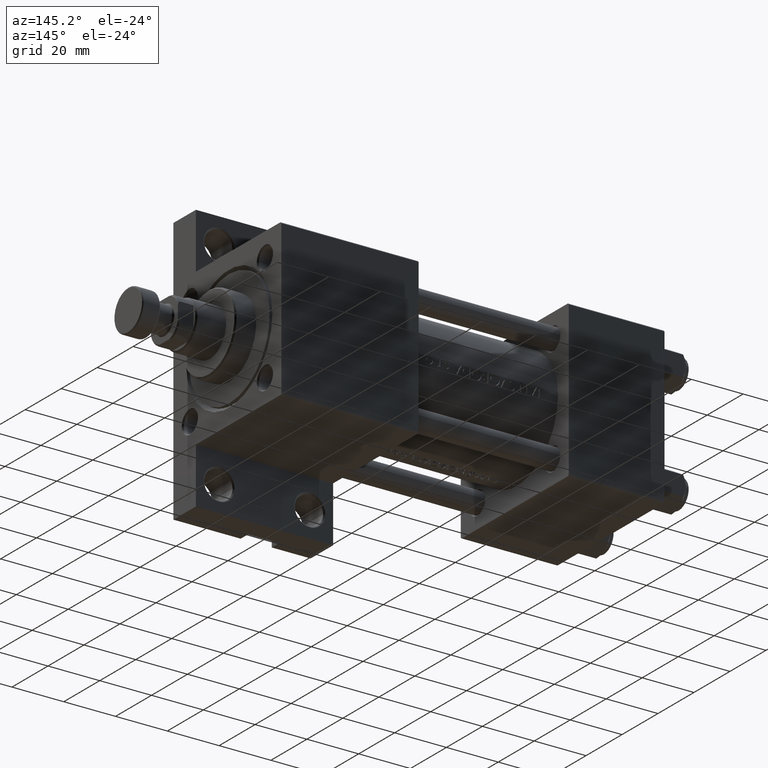
[diagram: clean part render]
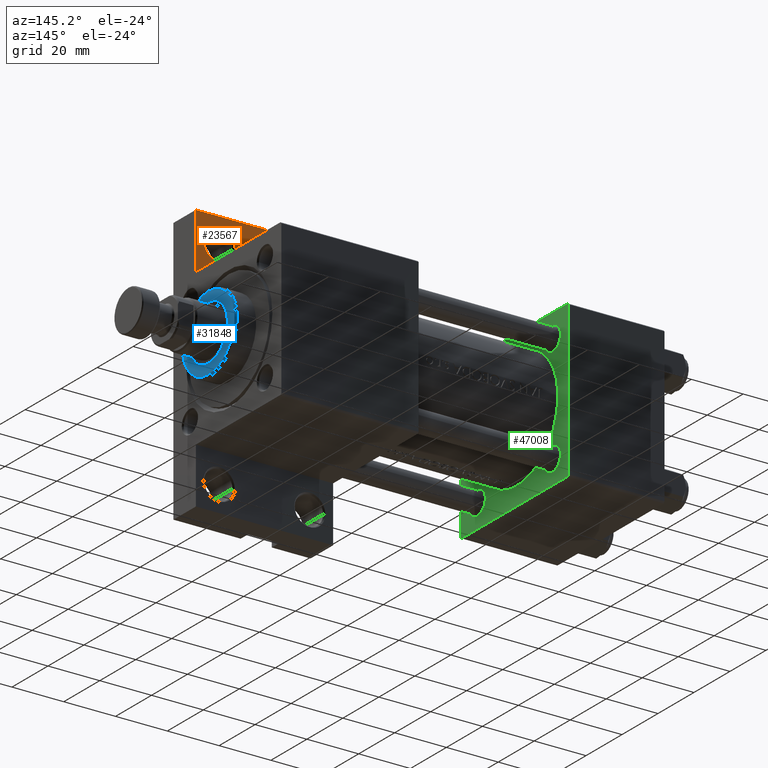
[diagram: same view with three faces highlighted in distinct colors, each labeled with its STEP entity id]
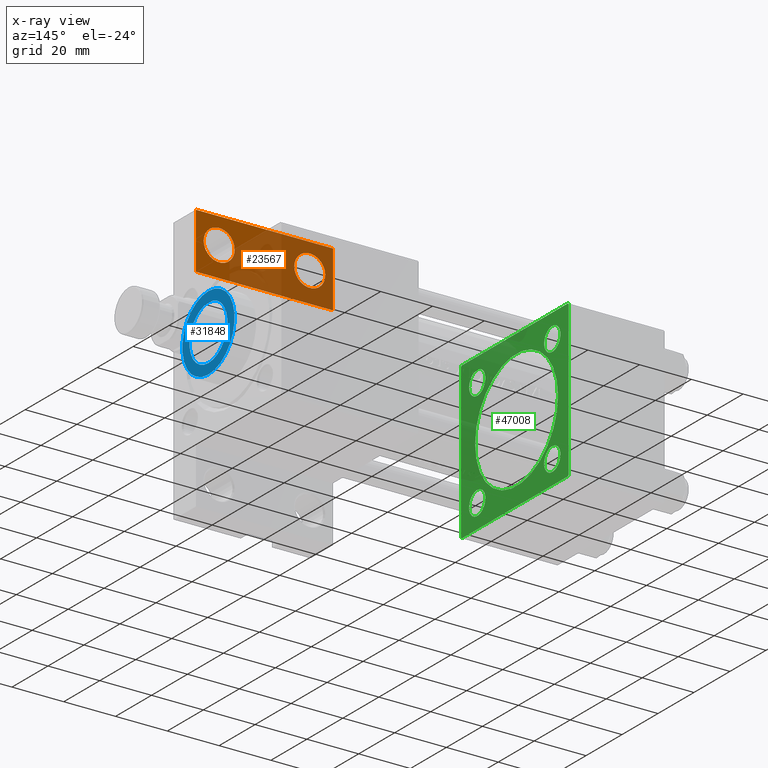
[diagram: x-ray of the same camera — body ghosted, the three highlighted faces saturated]
A machine part, auxiliary view with three faces highlighted in distinct colors.
The next image is the same camera in x-ray (body ghosted, the three faces saturated) — at least one of them is partly hidden behind the body in this view.
Their STEP definitions:

[orange] entity #23567 — the highlighted planar face has unit normal (0, -1, 0).
#2116 = DIRECTION ( 'NONE',  ( -1.000000000000000000, 0.000000000000000000, 0.000000000000000000 ) ) ;
#2266 = VERTEX_POINT ( 'NONE', #44122 ) ;
#2318 = FACE_BOUND ( 'NONE', #23313, .T. ) ;
#2433 = DIRECTION ( 'NONE',  ( -1.000000000000000000, -0.000000000000000000, -0.000000000000000000 ) ) ;
#3293 = EDGE_CURVE ( 'NONE', #2266, #9167, #6793, .T. ) ;
#3896 = DIRECTION ( 'NONE',  ( 0.000000000000000000, 0.000000000000000000, -1.000000000000000000 ) ) ;
#3907 = EDGE_CURVE ( 'NONE', #31834, #22205, #47284, .T. ) ;
#4841 = ORIENTED_EDGE ( 'NONE', *, *, #9310, .F. ) ;
#4990 = DIRECTION ( 'NONE',  ( -0.000000000000000000, -1.000000000000000000, -0.000000000000000000 ) ) ;
#5441 = VERTEX_POINT ( 'NONE', #45553 ) ;
#6793 = CIRCLE ( 'NONE', #26657, 5.999500000000018929 ) ;
#7463 = DIRECTION ( 'NONE',  ( -1.000000000000000000, 0.000000000000000000, 0.000000000000000000 ) ) ;
#7903 = EDGE_CURVE ( 'NONE', #43804, #24729, #18464, .T. ) ;
#8787 = CIRCLE ( 'NONE', #13560, 5.999500000000018929 ) ;
#9167 = VERTEX_POINT ( 'NONE', #36036 ) ;
#9310 = EDGE_CURVE ( 'NONE', #24729, #48321, #10159, .T. ) ;
#9885 = CARTESIAN_POINT ( 'NONE',  ( 144.9994999999999550, -41.50000000000000000, -17.49999999999999645 ) ) ;
#10026 = FACE_BOUND ( 'NONE', #24172, .T. ) ;
#10159 = LINE ( 'NONE', #25581, #35465 ) ;
#10761 = AXIS2_PLACEMENT_3D ( 'NONE', #37957, #3896, #41938 ) ;
#11435 = ORIENTED_EDGE ( 'NONE', *, *, #3293, .T. ) ;
#11563 = AXIS2_PLACEMENT_3D ( 'NONE', #45256, #41526, #7463 ) ;
#12612 = VECTOR ( 'NONE', #4990, 1000.000000000000000 ) ;
#13161 = VECTOR ( 'NONE', #29665, 1000.000000000000000 ) ;
#13560 = AXIS2_PLACEMENT_3D ( 'NONE', #47068, #24688, #16970 ) ;
#13762 = DIRECTION ( 'NONE',  ( 0.000000000000000000, 0.000000000000000000, -1.000000000000000000 ) ) ;
#14603 = LINE ( 'NONE', #36996, #22413 ) ;
#16970 = DIRECTION ( 'NONE',  ( -1.000000000000000000, 0.000000000000000000, 0.000000000000000000 ) ) ;
#17485 = PLANE ( 'NONE',  #22309 ) ;
#18464 = LINE ( 'NONE', #44824, #13161 ) ;
#18947 = EDGE_CURVE ( 'NONE', #48321, #5441, #43267, .T. ) ;
#19263 = ORIENTED_EDGE ( 'NONE', *, *, #34755, .T. ) ;
#19788 = CARTESIAN_POINT ( 'NONE',  ( 94.99999999999998579, -51.50000000000000711, -17.49999999999999645 ) ) ;
#20970 = FACE_OUTER_BOUND ( 'NONE', #26678, .T. ) ;
#22205 = VERTEX_POINT ( 'NONE', #9885 ) ;
#22309 = AXIS2_PLACEMENT_3D ( 'NONE', #40364, #13762, #32676 ) ;
#22413 = VECTOR ( 'NONE', #2433, 1000.000000000000000 ) ;
#23313 = EDGE_LOOP ( 'NONE', ( #42871, #45385 ) ) ;
#23567 = ADVANCED_FACE ( 'NONE', ( #2318, #10026, #20970 ), #17485, .F. ) ;
#24172 = EDGE_LOOP ( 'NONE', ( #11435, #19263 ) ) ;
#24688 = DIRECTION ( 'NONE',  ( 0.000000000000000000, 0.000000000000000000, -1.000000000000000000 ) ) ;
#24729 = VERTEX_POINT ( 'NONE', #44666 ) ;
#25581 = CARTESIAN_POINT ( 'NONE',  ( 95.00000000000000000, -30.00000000000000000, -17.49999999999999645 ) ) ;
#26657 = AXIS2_PLACEMENT_3D ( 'NONE', #32223, #29645, #2116 ) ;
#26678 = EDGE_LOOP ( 'NONE', ( #44725, #4841, #48836, #30220 ) ) ;
#26698 = EDGE_CURVE ( 'NONE', #5441, #43804, #14603, .T. ) ;
#29645 = DIRECTION ( 'NONE',  ( 0.000000000000000000, 0.000000000000000000, -1.000000000000000000 ) ) ;
#29665 = DIRECTION ( 'NONE',  ( 6.454785026890443649E-16, 1.000000000000000000, 0.000000000000000000 ) ) ;
#30220 = ORIENTED_EDGE ( 'NONE', *, *, #26698, .F. ) ;
#31834 = VERTEX_POINT ( 'NONE', #47259 ) ;
#31854 = CARTESIAN_POINT ( 'NONE',  ( 148.0000000000000000, -51.50000000000000711, -17.49999999999999645 ) ) ;
#32223 = CARTESIAN_POINT ( 'NONE',  ( 103.9999999999999574, -41.49999999999997868, -17.49999999999999645 ) ) ;
#32676 = DIRECTION ( 'NONE',  ( -1.000000000000000000, 0.000000000000000000, -0.000000000000000000 ) ) ;
#33029 = CIRCLE ( 'NONE', #11563, 5.999499999999990507 ) ;
#34755 = EDGE_CURVE ( 'NONE', #9167, #2266, #8787, .T. ) ;
#35465 = VECTOR ( 'NONE', #40743, 1000.000000000000000 ) ;
#35830 = CARTESIAN_POINT ( 'NONE',  ( 148.0000000000000000, -30.00000000000000000, -17.49999999999998224 ) ) ;
#36036 = CARTESIAN_POINT ( 'NONE',  ( 98.00049999999993133, -41.49999999999997868, -17.49999999999999645 ) ) ;
#36996 = CARTESIAN_POINT ( 'NONE',  ( 94.99999999999998579, -51.50000000000000711, -17.49999999999999645 ) ) ;
#37957 = CARTESIAN_POINT ( 'NONE',  ( 138.9999999999999432, -41.50000000000000000, -17.49999999999999645 ) ) ;
#40364 = CARTESIAN_POINT ( 'NONE',  ( 0.000000000000000000, 0.000000000000000000, -17.49999999999999645 ) ) ;
#40743 = DIRECTION ( 'NONE',  ( 1.000000000000000000, -1.309225264888156623E-16, 0.000000000000000000 ) ) ;
#41526 = DIRECTION ( 'NONE',  ( 0.000000000000000000, 0.000000000000000000, -1.000000000000000000 ) ) ;
#41938 = DIRECTION ( 'NONE',  ( -1.000000000000000000, 0.000000000000000000, 0.000000000000000000 ) ) ;
#42871 = ORIENTED_EDGE ( 'NONE', *, *, #49190, .T. ) ;
#43267 = LINE ( 'NONE', #31854, #12612 ) ;
#43804 = VERTEX_POINT ( 'NONE', #19788 ) ;
#44122 = CARTESIAN_POINT ( 'NONE',  ( 109.9994999999999692, -41.49999999999997868, -17.49999999999999645 ) ) ;
#44666 = CARTESIAN_POINT ( 'NONE',  ( 95.00000000000000000, -30.00000000000000000, -17.49999999999999645 ) ) ;
#44725 = ORIENTED_EDGE ( 'NONE', *, *, #18947, .F. ) ;
#44824 = CARTESIAN_POINT ( 'NONE',  ( 94.99999999999998579, -51.50000000000000711, -17.49999999999999645 ) ) ;
#45256 = CARTESIAN_POINT ( 'NONE',  ( 138.9999999999999432, -41.50000000000000000, -17.49999999999999645 ) ) ;
#45385 = ORIENTED_EDGE ( 'NONE', *, *, #3907, .T. ) ;
#45553 = CARTESIAN_POINT ( 'NONE',  ( 148.0000000000000000, -51.50000000000000711, -17.49999999999999645 ) ) ;
#47068 = CARTESIAN_POINT ( 'NONE',  ( 103.9999999999999574, -41.49999999999997868, -17.49999999999999645 ) ) ;
#47259 = CARTESIAN_POINT ( 'NONE',  ( 133.0004999999999598, -41.50000000000000000, -17.49999999999999645 ) ) ;
#47284 = CIRCLE ( 'NONE', #10761, 5.999499999999990507 ) ;
#48321 = VERTEX_POINT ( 'NONE', #35830 ) ;
#48836 = ORIENTED_EDGE ( 'NONE', *, *, #7903, .F. ) ;
#49190 = EDGE_CURVE ( 'NONE', #22205, #31834, #33029, .T. ) ;

[blue] entity #31848 — the highlighted planar face has unit normal (1, 0, 0).
#64 = EDGE_LOOP ( 'NONE', ( #24602, #25474 ) ) ;
#2611 = DIRECTION ( 'NONE',  ( 0.000000000000000000, 0.000000000000000000, 1.000000000000000000 ) ) ;
#3331 = EDGE_CURVE ( 'NONE', #13278, #20172, #13132, .T. ) ;
#5596 = DIRECTION ( 'NONE',  ( 1.000000000000000000, 0.000000000000000000, 0.000000000000000000 ) ) ;
#6442 = DIRECTION ( 'NONE',  ( 0.000000000000000000, 0.000000000000000000, 1.000000000000000000 ) ) ;
#9922 = EDGE_CURVE ( 'NONE', #46054, #13655, #11631, .T. ) ;
#11631 = CIRCLE ( 'NONE', #33112, 14.50000000000001776 ) ;
#13132 = CIRCLE ( 'NONE', #48889, 10.50000000000000000 ) ;
#13278 = VERTEX_POINT ( 'NONE', #19707 ) ;
#13655 = VERTEX_POINT ( 'NONE', #35810 ) ;
#17172 = DIRECTION ( 'NONE',  ( 1.000000000000000000, 0.000000000000000000, -0.000000000000000000 ) ) ;
#17664 = CARTESIAN_POINT ( 'NONE',  ( 0.000000000000000000, 0.000000000000000000, 36.69999999999999574 ) ) ;
#18199 = DIRECTION ( 'NONE',  ( 0.000000000000000000, 0.000000000000000000, 1.000000000000000000 ) ) ;
#19125 = CARTESIAN_POINT ( 'NONE',  ( 10.50000000000000000, 0.000000000000000000, 36.69999999999999574 ) ) ;
#19707 = CARTESIAN_POINT ( 'NONE',  ( -10.50000000000000000, 1.285879139104720831E-15, 36.69999999999999574 ) ) ;
#19996 = DIRECTION ( 'NONE',  ( 0.000000000000000000, 0.000000000000000000, 1.000000000000000000 ) ) ;
#20172 = VERTEX_POINT ( 'NONE', #19125 ) ;
#20899 = DIRECTION ( 'NONE',  ( 0.000000000000000000, 0.000000000000000000, 1.000000000000000000 ) ) ;
#21152 = FACE_BOUND ( 'NONE', #48519, .T. ) ;
#24536 = EDGE_CURVE ( 'NONE', #13655, #46054, #24731, .T. ) ;
#24602 = ORIENTED_EDGE ( 'NONE', *, *, #24536, .T. ) ;
#24731 = CIRCLE ( 'NONE', #47771, 14.50000000000001776 ) ;
#25134 = PLANE ( 'NONE',  #39683 ) ;
#25474 = ORIENTED_EDGE ( 'NONE', *, *, #9922, .T. ) ;
#29556 = CARTESIAN_POINT ( 'NONE',  ( 0.000000000000000000, 0.000000000000000000, 36.69999999999999574 ) ) ;
#30127 = EDGE_CURVE ( 'NONE', #20172, #13278, #41214, .T. ) ;
#30883 = AXIS2_PLACEMENT_3D ( 'NONE', #43638, #2611, #43886 ) ;
#31213 = DIRECTION ( 'NONE',  ( 1.000000000000000000, 0.000000000000000000, 0.000000000000000000 ) ) ;
#31848 = ADVANCED_FACE ( 'NONE', ( #21152, #40295 ), #25134, .T. ) ;
#32450 = ORIENTED_EDGE ( 'NONE', *, *, #30127, .F. ) ;
#33064 = DIRECTION ( 'NONE',  ( 1.000000000000000000, 0.000000000000000000, 0.000000000000000000 ) ) ;
#33112 = AXIS2_PLACEMENT_3D ( 'NONE', #34694, #19996, #31213 ) ;
#34527 = ORIENTED_EDGE ( 'NONE', *, *, #3331, .F. ) ;
#34694 = CARTESIAN_POINT ( 'NONE',  ( 0.000000000000000000, 0.000000000000000000, 36.69999999999999574 ) ) ;
#35810 = CARTESIAN_POINT ( 'NONE',  ( -14.50000000000001776, 0.000000000000000000, 36.69999999999999574 ) ) ;
#37103 = CARTESIAN_POINT ( 'NONE',  ( 0.000000000000000000, 0.000000000000000000, 36.69999999999999574 ) ) ;
#39683 = AXIS2_PLACEMENT_3D ( 'NONE', #17664, #20899, #17172 ) ;
#40295 = FACE_OUTER_BOUND ( 'NONE', #64, .T. ) ;
#41214 = CIRCLE ( 'NONE', #30883, 10.50000000000000000 ) ;
#43638 = CARTESIAN_POINT ( 'NONE',  ( 0.000000000000000000, 0.000000000000000000, 36.69999999999999574 ) ) ;
#43886 = DIRECTION ( 'NONE',  ( 1.000000000000000000, 0.000000000000000000, 0.000000000000000000 ) ) ;
#46054 = VERTEX_POINT ( 'NONE', #47903 ) ;
#47771 = AXIS2_PLACEMENT_3D ( 'NONE', #29556, #6442, #33064 ) ;
#47903 = CARTESIAN_POINT ( 'NONE',  ( 14.50000000000001776, 1.806354028742346985E-15, 36.69999999999999574 ) ) ;
#48519 = EDGE_LOOP ( 'NONE', ( #32450, #34527 ) ) ;
#48889 = AXIS2_PLACEMENT_3D ( 'NONE', #37103, #18199, #5596 ) ;

[green] entity #47008 — the highlighted planar face has unit normal (-1, 0, -0).
#137 = AXIS2_PLACEMENT_3D ( 'NONE', #31922, #42602, #19970 ) ;
#194 = AXIS2_PLACEMENT_3D ( 'NONE', #6422, #13877, #47945 ) ;
#599 = EDGE_CURVE ( 'NONE', #42694, #19145, #6523, .T. ) ;
#1147 = ORIENTED_EDGE ( 'NONE', *, *, #42224, .T. ) ;
#1279 = CARTESIAN_POINT ( 'NONE',  ( 37.00000000000000000, 20.84999999999999787, -20.85000000000000142 ) ) ;
#1431 = EDGE_CURVE ( 'NONE', #7532, #31465, #30262, .T. ) ;
#1682 = AXIS2_PLACEMENT_3D ( 'NONE', #6120, #17299, #21284 ) ;
#2034 = CARTESIAN_POINT ( 'NONE',  ( 37.00000000000000000, 2.694222958124176415E-15, -22.00000000000000000 ) ) ;
#2098 = ORIENTED_EDGE ( 'NONE', *, *, #599, .T. ) ;
#2392 = VERTEX_POINT ( 'NONE', #11752 ) ;
#2472 = CIRCLE ( 'NONE', #1682, 4.499999999999990230 ) ;
#2798 = CARTESIAN_POINT ( 'NONE',  ( 37.00000000000000000, 0.000000000000000000, 0.000000000000000000 ) ) ;
#2952 = DIRECTION ( 'NONE',  ( 0.000000000000000000, 0.000000000000000000, 1.000000000000000000 ) ) ;
#3045 = DIRECTION ( 'NONE',  ( -1.000000000000000000, 0.000000000000000000, -0.000000000000000000 ) ) ;
#3082 = DIRECTION ( 'NONE',  ( -1.000000000000000000, 0.000000000000000000, -0.000000000000000000 ) ) ;
#3135 = EDGE_LOOP ( 'NONE', ( #29860, #1147 ) ) ;
#3164 = CARTESIAN_POINT ( 'NONE',  ( 37.00000000000000000, 29.99999999999999289, -30.00000000000000000 ) ) ;
#3288 = DIRECTION ( 'NONE',  ( 0.000000000000000000, 0.000000000000000000, 1.000000000000000000 ) ) ;
#3676 = CARTESIAN_POINT ( 'NONE',  ( 37.00000000000000000, 29.99999999999999289, 30.00000000000000000 ) ) ;
#3725 = CARTESIAN_POINT ( 'NONE',  ( 37.00000000000000000, 29.49999999999999289, 30.00000000000000000 ) ) ;
#5026 = VECTOR ( 'NONE', #38876, 1000.000000000000114 ) ;
#5273 = DIRECTION ( 'NONE',  ( -1.000000000000000000, 0.000000000000000000, -0.000000000000000000 ) ) ;
#5416 = EDGE_CURVE ( 'NONE', #41618, #32560, #8328, .T. ) ;
#6120 = CARTESIAN_POINT ( 'NONE',  ( 37.00000000000000000, -20.84999999999999076, -20.85000000000000497 ) ) ;
#6422 = CARTESIAN_POINT ( 'NONE',  ( 37.00000000000000000, -20.84999999999999076, 20.85000000000000497 ) ) ;
#6523 = LINE ( 'NONE', #47304, #47764 ) ;
#6537 = CARTESIAN_POINT ( 'NONE',  ( 37.00000000000000000, 20.84999999999999787, 20.85000000000000142 ) ) ;
#7532 = VERTEX_POINT ( 'NONE', #30102 ) ;
#7963 = VECTOR ( 'NONE', #34237, 1000.000000000000000 ) ;
#8328 = CIRCLE ( 'NONE', #35323, 23.00000000000000000 ) ;
#9713 = CIRCLE ( 'NONE', #194, 4.499999999999990230 ) ;
#11021 = CARTESIAN_POINT ( 'NONE',  ( 37.00000000000000000, -20.84999999999999076, 20.85000000000000497 ) ) ;
#11067 = VECTOR ( 'NONE', #48863, 1000.000000000000000 ) ;
#11225 = FACE_BOUND ( 'NONE', #12835, .T. ) ;
#11490 = EDGE_CURVE ( 'NONE', #33066, #34616, #47461, .T. ) ;
#11591 = CARTESIAN_POINT ( 'NONE',  ( 37.00000000000000000, 29.99999999999999289, -29.50000000000000000 ) ) ;
#11752 = CARTESIAN_POINT ( 'NONE',  ( 37.00000000000000000, -29.50000000000000000, -30.00000000000000711 ) ) ;
#11830 = DIRECTION ( 'NONE',  ( -0.000000000000000000, 0.7071067811865574537, 0.7071067811865376918 ) ) ;
#12017 = CIRCLE ( 'NONE', #137, 4.499999999999990230 ) ;
#12099 = ORIENTED_EDGE ( 'NONE', *, *, #20540, .T. ) ;
#12233 = ORIENTED_EDGE ( 'NONE', *, *, #1431, .T. ) ;
#12835 = EDGE_LOOP ( 'NONE', ( #48458, #25545 ) ) ;
#13257 = CARTESIAN_POINT ( 'NONE',  ( 37.00000000000000000, 29.99999999999999289, -29.50000000000000000 ) ) ;
#13425 = VERTEX_POINT ( 'NONE', #13484 ) ;
#13484 = CARTESIAN_POINT ( 'NONE',  ( 37.00000000000000000, -20.84999999999999076, 25.34999999999999432 ) ) ;
#13877 = DIRECTION ( 'NONE',  ( -1.000000000000000000, 0.000000000000000000, -0.000000000000000000 ) ) ;
#14516 = EDGE_LOOP ( 'NONE', ( #26029, #22859 ) ) ;
#14758 = ORIENTED_EDGE ( 'NONE', *, *, #19668, .T. ) ;
#14844 = CARTESIAN_POINT ( 'NONE',  ( 37.00000000000000000, 20.84999999999999787, -16.35000000000001208 ) ) ;
#14966 = CARTESIAN_POINT ( 'NONE',  ( 37.00000000000000000, -1.224646799147354686E-16, 1.000000000000000888 ) ) ;
#15250 = AXIS2_PLACEMENT_3D ( 'NONE', #11021, #3082, #18248 ) ;
#15992 = CARTESIAN_POINT ( 'NONE',  ( 37.00000000000000000, -20.84999999999999076, -20.85000000000000497 ) ) ;
#16233 = DIRECTION ( 'NONE',  ( -1.000000000000000000, 0.000000000000000000, -0.000000000000000000 ) ) ;
#16484 = AXIS2_PLACEMENT_3D ( 'NONE', #1279, #5273, #35367 ) ;
#16725 = LINE ( 'NONE', #27678, #5026 ) ;
#17099 = CARTESIAN_POINT ( 'NONE',  ( 37.00000000000000000, 20.84999999999999787, 16.35000000000001208 ) ) ;
#17299 = DIRECTION ( 'NONE',  ( -1.000000000000000000, 0.000000000000000000, -0.000000000000000000 ) ) ;
#18112 = CARTESIAN_POINT ( 'NONE',  ( 37.00000000000000000, 20.84999999999999787, -20.85000000000000142 ) ) ;
#18248 = DIRECTION ( 'NONE',  ( 0.000000000000000000, 0.000000000000000000, 1.000000000000000000 ) ) ;
#18451 = DIRECTION ( 'NONE',  ( -0.000000000000000000, 0.000000000000000000, 1.000000000000000000 ) ) ;
#18547 = EDGE_CURVE ( 'NONE', #35494, #21549, #19755, .T. ) ;
#18769 = CARTESIAN_POINT ( 'NONE',  ( 37.00000000000000000, -30.00000000000000000, -29.50000000000001776 ) ) ;
#18925 = FACE_OUTER_BOUND ( 'NONE', #32019, .T. ) ;
#18999 = DIRECTION ( 'NONE',  ( 0.000000000000000000, 0.000000000000000000, -1.000000000000000000 ) ) ;
#19145 = VERTEX_POINT ( 'NONE', #42241 ) ;
#19426 = AXIS2_PLACEMENT_3D ( 'NONE', #2798, #3045, #18451 ) ;
#19644 = CARTESIAN_POINT ( 'NONE',  ( 37.00000000000000000, -29.49999999999998579, 29.99999999999999289 ) ) ;
#19668 = EDGE_CURVE ( 'NONE', #19145, #19747, #34434, .T. ) ;
#19747 = VERTEX_POINT ( 'NONE', #18769 ) ;
#19755 = CIRCLE ( 'NONE', #34849, 4.499999999999990230 ) ;
#19970 = DIRECTION ( 'NONE',  ( 0.000000000000000000, 0.000000000000000000, 1.000000000000000000 ) ) ;
#20540 = EDGE_CURVE ( 'NONE', #32005, #42694, #46164, .T. ) ;
#20830 = LINE ( 'NONE', #3164, #7963 ) ;
#21086 = CARTESIAN_POINT ( 'NONE',  ( 37.00000000000000000, -29.50000000000001066, -30.00000000000000711 ) ) ;
#21284 = DIRECTION ( 'NONE',  ( 0.000000000000000000, 0.000000000000000000, 1.000000000000000000 ) ) ;
#21549 = VERTEX_POINT ( 'NONE', #43132 ) ;
#21695 = FACE_BOUND ( 'NONE', #14516, .T. ) ;
#21798 = ORIENTED_EDGE ( 'NONE', *, *, #34812, .T. ) ;
#22302 = EDGE_CURVE ( 'NONE', #7532, #2392, #20830, .T. ) ;
#22417 = AXIS2_PLACEMENT_3D ( 'NONE', #46372, #31469, #34218 ) ;
#22859 = ORIENTED_EDGE ( 'NONE', *, *, #5416, .F. ) ;
#23265 = EDGE_CURVE ( 'NONE', #21549, #35494, #2472, .T. ) ;
#23796 = CARTESIAN_POINT ( 'NONE',  ( 37.00000000000000000, 20.84999999999999787, 25.34999999999999076 ) ) ;
#24714 = VERTEX_POINT ( 'NONE', #23796 ) ;
#25433 = PLANE ( 'NONE',  #19426 ) ;
#25460 = CIRCLE ( 'NONE', #45323, 4.499999999999990230 ) ;
#25545 = ORIENTED_EDGE ( 'NONE', *, *, #23265, .T. ) ;
#25886 = ORIENTED_EDGE ( 'NONE', *, *, #40755, .T. ) ;
#26029 = ORIENTED_EDGE ( 'NONE', *, *, #41968, .F. ) ;
#26224 = CARTESIAN_POINT ( 'NONE',  ( 37.00000000000000000, 29.99999999999999289, 30.00000000000000000 ) ) ;
#26400 = FACE_BOUND ( 'NONE', #40193, .T. ) ;
#26496 = VECTOR ( 'NONE', #11830, 999.9999999999998863 ) ;
#26632 = EDGE_CURVE ( 'NONE', #19747, #2392, #47196, .T. ) ;
#26812 = EDGE_CURVE ( 'NONE', #34135, #13425, #9713, .T. ) ;
#26966 = VECTOR ( 'NONE', #33774, 1000.000000000000000 ) ;
#27678 = CARTESIAN_POINT ( 'NONE',  ( 37.00000000000000000, 29.49999999999999289, 30.00000000000000000 ) ) ;
#28259 = ORIENTED_EDGE ( 'NONE', *, *, #11490, .T. ) ;
#28325 = ORIENTED_EDGE ( 'NONE', *, *, #22302, .F. ) ;
#28466 = CARTESIAN_POINT ( 'NONE',  ( 37.00000000000000000, -20.84999999999999076, -25.34999999999999432 ) ) ;
#28754 = AXIS2_PLACEMENT_3D ( 'NONE', #18112, #44720, #2952 ) ;
#29632 = CARTESIAN_POINT ( 'NONE',  ( 37.00000000000000000, 20.84999999999999787, -25.34999999999999076 ) ) ;
#29860 = ORIENTED_EDGE ( 'NONE', *, *, #26812, .T. ) ;
#30102 = CARTESIAN_POINT ( 'NONE',  ( 37.00000000000000000, 29.49999999999997868, -30.00000000000000000 ) ) ;
#30227 = ORIENTED_EDGE ( 'NONE', *, *, #36683, .T. ) ;
#30262 = LINE ( 'NONE', #11591, #26496 ) ;
#31465 = VERTEX_POINT ( 'NONE', #13257 ) ;
#31469 = DIRECTION ( 'NONE',  ( 1.000000000000000000, -0.000000000000000000, 0.000000000000000000 ) ) ;
#31922 = CARTESIAN_POINT ( 'NONE',  ( 37.00000000000000000, 20.84999999999999787, 20.85000000000000142 ) ) ;
#32005 = VERTEX_POINT ( 'NONE', #3725 ) ;
#32019 = EDGE_LOOP ( 'NONE', ( #28325, #12233, #37923, #43378, #12099, #2098, #14758, #43514 ) ) ;
#32560 = VERTEX_POINT ( 'NONE', #41186 ) ;
#32843 = EDGE_LOOP ( 'NONE', ( #21798, #30227 ) ) ;
#33066 = VERTEX_POINT ( 'NONE', #29632 ) ;
#33639 = FACE_BOUND ( 'NONE', #32843, .T. ) ;
#33774 = DIRECTION ( 'NONE',  ( 0.000000000000000000, -1.000000000000000000, -1.156482317317871725E-16 ) ) ;
#33889 = DIRECTION ( 'NONE',  ( 1.000000000000000000, -0.000000000000000000, 0.000000000000000000 ) ) ;
#34135 = VERTEX_POINT ( 'NONE', #40527 ) ;
#34218 = DIRECTION ( 'NONE',  ( 0.000000000000000000, 0.000000000000000000, 1.000000000000000000 ) ) ;
#34237 = DIRECTION ( 'NONE',  ( 0.000000000000000000, -1.000000000000000000, -1.156482317317871725E-16 ) ) ;
#34434 = LINE ( 'NONE', #37425, #11067 ) ;
#34616 = VERTEX_POINT ( 'NONE', #14844 ) ;
#34812 = EDGE_CURVE ( 'NONE', #43686, #24714, #25460, .T. ) ;
#34849 = AXIS2_PLACEMENT_3D ( 'NONE', #15992, #16233, #42111 ) ;
#35103 = VECTOR ( 'NONE', #18999, 1000.000000000000000 ) ;
#35132 = VECTOR ( 'NONE', #39987, 1000.000000000000114 ) ;
#35323 = AXIS2_PLACEMENT_3D ( 'NONE', #14966, #33889, #49041 ) ;
#35367 = DIRECTION ( 'NONE',  ( 0.000000000000000000, 0.000000000000000000, 1.000000000000000000 ) ) ;
#35494 = VERTEX_POINT ( 'NONE', #28466 ) ;
#36367 = DIRECTION ( 'NONE',  ( -0.000000000000000000, -0.7071067811865474617, -0.7071067811865474617 ) ) ;
#36683 = EDGE_CURVE ( 'NONE', #24714, #43686, #12017, .T. ) ;
#37425 = CARTESIAN_POINT ( 'NONE',  ( 37.00000000000000000, -30.00000000000000000, 29.99999999999999289 ) ) ;
#37923 = ORIENTED_EDGE ( 'NONE', *, *, #40248, .F. ) ;
#38876 = DIRECTION ( 'NONE',  ( 0.000000000000000000, -0.7071067811865474617, 0.7071067811865474617 ) ) ;
#39889 = CIRCLE ( 'NONE', #15250, 4.499999999999990230 ) ;
#39987 = DIRECTION ( 'NONE',  ( 0.000000000000000000, 0.7071067811865474617, -0.7071067811865474617 ) ) ;
#40193 = EDGE_LOOP ( 'NONE', ( #28259, #25886 ) ) ;
#40248 = EDGE_CURVE ( 'NONE', #45573, #31465, #45857, .T. ) ;
#40527 = CARTESIAN_POINT ( 'NONE',  ( 37.00000000000000000, -20.84999999999999076, 16.35000000000001208 ) ) ;
#40755 = EDGE_CURVE ( 'NONE', #34616, #33066, #46980, .T. ) ;
#41186 = CARTESIAN_POINT ( 'NONE',  ( 37.00000000000000000, -1.224646799147354686E-16, 24.00000000000000000 ) ) ;
#41522 = CARTESIAN_POINT ( 'NONE',  ( 37.00000000000000000, 29.99999999999999289, 29.50000000000000000 ) ) ;
#41618 = VERTEX_POINT ( 'NONE', #2034 ) ;
#41968 = EDGE_CURVE ( 'NONE', #32560, #41618, #46237, .T. ) ;
#42111 = DIRECTION ( 'NONE',  ( 0.000000000000000000, 0.000000000000000000, 1.000000000000000000 ) ) ;
#42224 = EDGE_CURVE ( 'NONE', #13425, #34135, #39889, .T. ) ;
#42241 = CARTESIAN_POINT ( 'NONE',  ( 37.00000000000000000, -30.00000000000000000, 29.49999999999999289 ) ) ;
#42602 = DIRECTION ( 'NONE',  ( -1.000000000000000000, 0.000000000000000000, -0.000000000000000000 ) ) ;
#42694 = VERTEX_POINT ( 'NONE', #19644 ) ;
#43132 = CARTESIAN_POINT ( 'NONE',  ( 37.00000000000000000, -20.84999999999999076, -16.35000000000001208 ) ) ;
#43378 = ORIENTED_EDGE ( 'NONE', *, *, #44236, .T. ) ;
#43514 = ORIENTED_EDGE ( 'NONE', *, *, #26632, .T. ) ;
#43686 = VERTEX_POINT ( 'NONE', #17099 ) ;
#44236 = EDGE_CURVE ( 'NONE', #45573, #32005, #16725, .T. ) ;
#44320 = FACE_BOUND ( 'NONE', #3135, .T. ) ;
#44571 = DIRECTION ( 'NONE',  ( -1.000000000000000000, 0.000000000000000000, -0.000000000000000000 ) ) ;
#44720 = DIRECTION ( 'NONE',  ( -1.000000000000000000, 0.000000000000000000, -0.000000000000000000 ) ) ;
#45323 = AXIS2_PLACEMENT_3D ( 'NONE', #6537, #44571, #3288 ) ;
#45573 = VERTEX_POINT ( 'NONE', #41522 ) ;
#45857 = LINE ( 'NONE', #26224, #35103 ) ;
#46164 = LINE ( 'NONE', #3676, #26966 ) ;
#46237 = CIRCLE ( 'NONE', #22417, 23.00000000000000000 ) ;
#46372 = CARTESIAN_POINT ( 'NONE',  ( 37.00000000000000000, -1.224646799147354686E-16, 1.000000000000000888 ) ) ;
#46980 = CIRCLE ( 'NONE', #28754, 4.499999999999990230 ) ;
#47008 = ADVANCED_FACE ( 'NONE', ( #11225, #26400, #44320, #33639, #21695, #18925 ), #25433, .F. ) ;
#47196 = LINE ( 'NONE', #21086, #35132 ) ;
#47304 = CARTESIAN_POINT ( 'NONE',  ( 37.00000000000000000, -30.00000000000000000, 29.49999999999999289 ) ) ;
#47461 = CIRCLE ( 'NONE', #16484, 4.499999999999990230 ) ;
#47764 = VECTOR ( 'NONE', #36367, 1000.000000000000114 ) ;
#47945 = DIRECTION ( 'NONE',  ( 0.000000000000000000, 0.000000000000000000, 1.000000000000000000 ) ) ;
#48458 = ORIENTED_EDGE ( 'NONE', *, *, #18547, .T. ) ;
#48863 = DIRECTION ( 'NONE',  ( 0.000000000000000000, 0.000000000000000000, -1.000000000000000000 ) ) ;
#49041 = DIRECTION ( 'NONE',  ( 0.000000000000000000, 0.000000000000000000, 1.000000000000000000 ) ) ;